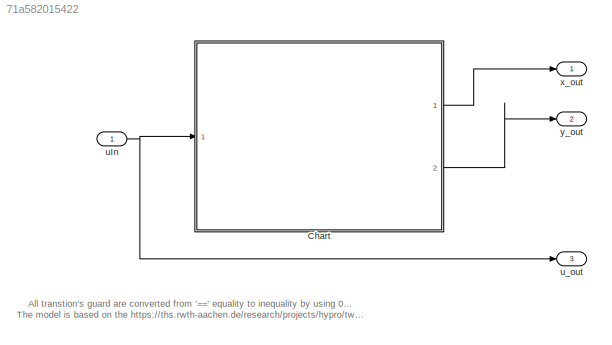
MODEL slx_71a582015422
KIND model
CONFIG AbsTol = auto
CONFIG EnableMultiTasking = off
CONFIG FixedStep = timeStepMax
CONFIG MaxStep = timeStepMax
CONFIG MinStep = auto
CONFIG RelTol = 1e-3
CONFIG SampleTimeConstraint = Unconstrained
CONFIG SolverName = FixedStepAuto
CONFIG StartTime = 0.0
CONFIG StopTime = timeFinal
WORKSPACE source: mxarray member
WORKSPACE x0 = 5
WORKSPACE y0 = 5
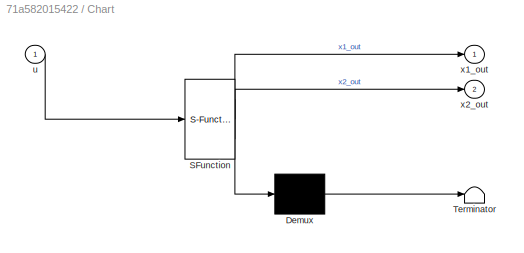
BLOCK [SubSystem] Chart
  ErrorFcn = Stateflow.Translate.translate
  PermitHierarchicalResolution = ExplicitOnly
  Ports = [1, 2]
  RequestExecContextInheritance = off
  SFBlockType = Chart
  TreatAsAtomicUnit = on
BLOCK [Demux] Chart/ Demux 
  Outputs = 1
  Ports = [1, 1]
BLOCK [S-Function] Chart/ SFunction 
  EnableBusSupport = on
  FunctionName = sf_sfun
  Parameters = a1,a2
  PortCounts = [1 3]
  Ports = [1, 3]
  SFcnIsStateOwnerBlock = off
  SFunctionDeploymentMode = off
  Tag = Stateflow S-Function 3
BLOCK [Terminator] Chart/ Terminator 
BLOCK [Inport] Chart/u
BLOCK [Outport] Chart/x1_out
BLOCK [Outport] Chart/x2_out
  Port = 2
BLOCK [Inport] uIn
BLOCK [Outport] u_out
  Port = 3
  SignalName = x3Out
BLOCK [Outport] x_out
  SignalName = x1Out
BLOCK [Outport] y_out
  Port = 2
  SignalName = x2Out
ANNOTATION (root): All transtion's guard are converted from '==' equality to inequality by using 0.01 as range. The model is based on the https://ths.rwth-aachen.de/research/projects/hypro/two-tank/
LINE Chart:1 -> x_out:1
LINE Chart:2 -> y_out:1
NET uIn:1 -> Chart:1, u_out:1
note: NET lines group one-source signal fan-out (src -> all destinations, sorted); 1:1 wires keep LINE
CHART Chart states=4 transitions=12
  STATE_LABEL 'off_off\ndu:  % derivatives\n  x1_dot = -1.0 * x1 - 2 + u;\n  x2_dot = 1.0 * x1 + u;\nexit:\n      x1_out=x1;\n      x2_out=x2;'
  STATE_LABEL 'on_off\ndu:  % derivatives\n  x1_dot = -1.0 * x1 + 3 + u;\n  x2_dot = 1.0 * x1 + u;\nexit:\n      x1_out=x1;\n      x2_out=x2;'
  STATE_LABEL 'off_on\ndu:  % derivatives\n  x1_dot = -1.0 * x1 - 2 + u;\n  x2_dot = 1.0 * x1 - 1.0 * x2 - 5 + u;\nexit:\n      x1_out=x1;\n      x2_out=x2;'
  STATE_LABEL 'on_on\ndu:\n  x1_dot =  -1.0 * x1 + 3 + u;\n  x2_dot = 1.0 * x1 - 1.0 * x2 - 5 + u;\nexit:\n      x1_out=x1;\n      x2_out=x2;'
CHART  states=0 transitions=0
